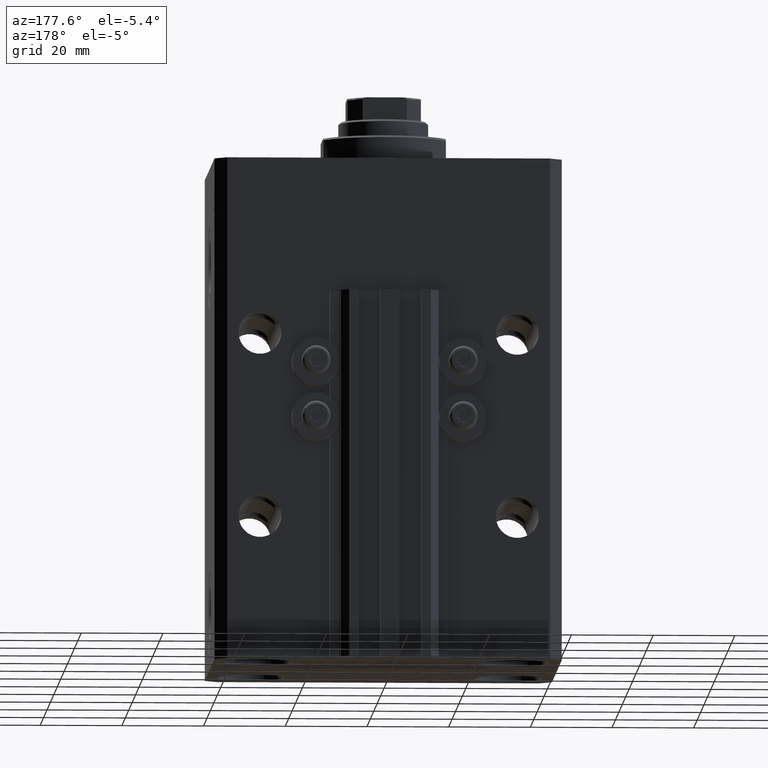
[diagram: clean part render]
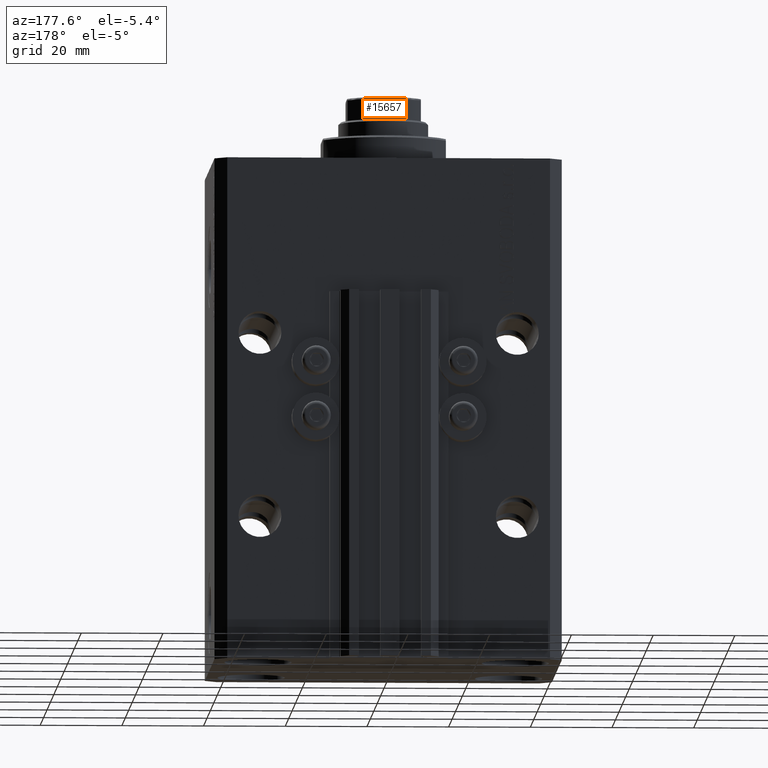
[diagram: same view with one face highlighted and labeled with its STEP entity id]
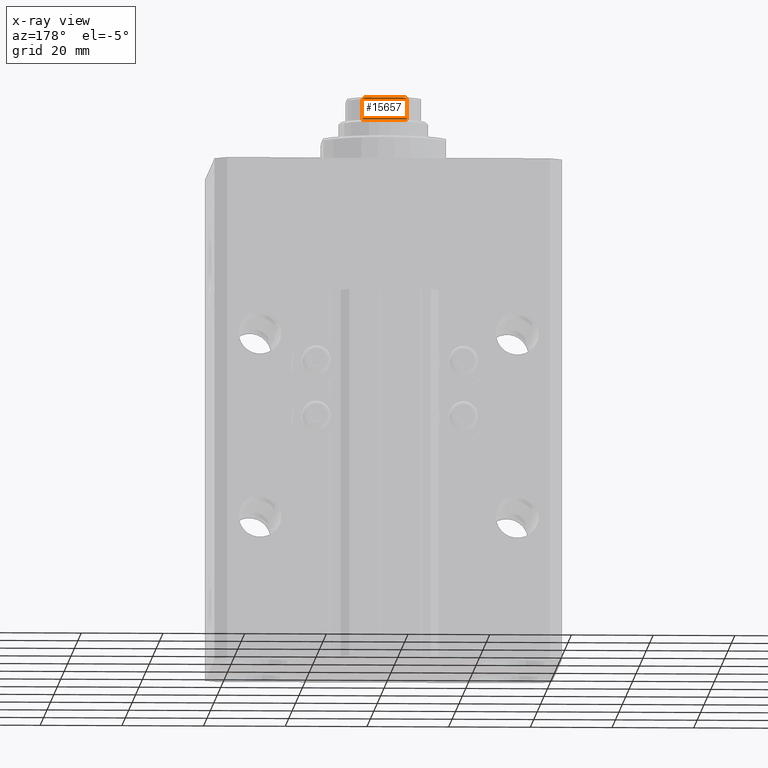
[diagram: x-ray of the same camera — body ghosted, the highlighted face saturated]
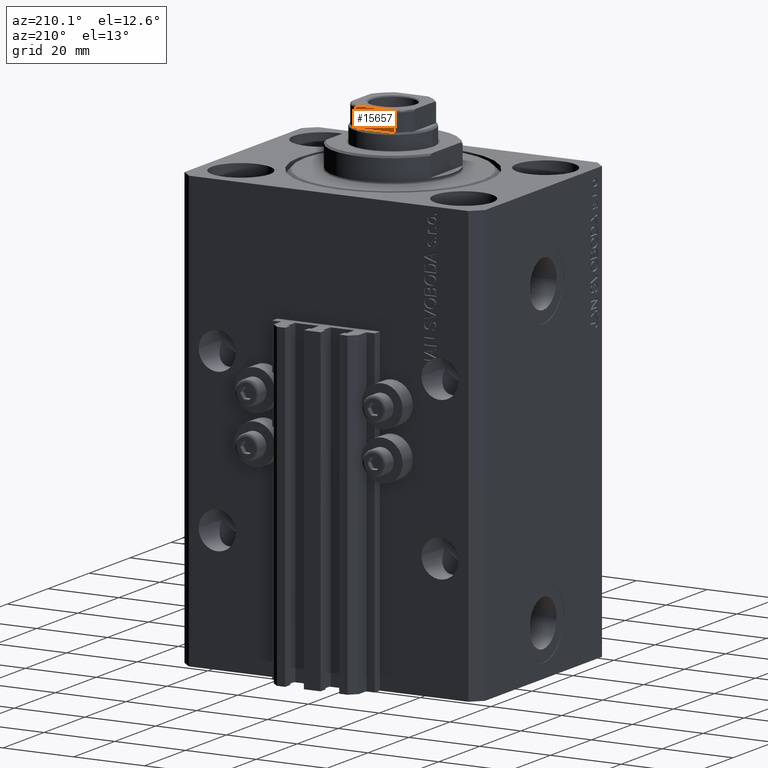
[diagram: same view with one face highlighted and labeled with its STEP entity id]
A machine part, auxiliary view. The second image highlights one B-rep face of the part: STEP entity #15657.
The next image is the same camera in x-ray: the body ghosted, the highlighted face saturated — about 0% of this face is hidden behind the body in this view.
A second angle (auxiliary view) of the same face is appended — the face is thin or edge-on in the first view.
In plain terms, the highlighted planar face has unit normal (0, -1, 0).
Its self-contained STEP definition (entity closure, byte-faithful):
#126 = CARTESIAN_POINT ( 'NONE',  ( 5.408326913195989682, 8.999999999999998224, 128.0999999999999943 ) ) ;
#722 = LINE ( 'NONE', #27072, #26018 ) ;
#864 = CARTESIAN_POINT ( 'NONE',  ( -5.408326913195986130, 8.999999999999998224, 123.0999999999999943 ) ) ;
#2374 = VERTEX_POINT ( 'NONE', #44009 ) ;
#2682 = VERTEX_POINT ( 'NONE', #8337 ) ;
#2803 = CARTESIAN_POINT ( 'NONE',  ( -5.390954572107328424, 8.999999999999998224, 128.2053628521399560 ) ) ;
#3031 = ORIENTED_EDGE ( 'NONE', *, *, #6586, .T. ) ;
#3723 = B_SPLINE_CURVE_WITH_KNOTS ( 'NONE', 3,
 ( #25987, #33844, #7758, #19093, #30394, #7275, #18606, #38012, #22306, #126 ),
 .UNSPECIFIED., .F., .F.,
 ( 4, 2, 2, 2, 4 ),
 ( 8.673617379884035472E-19, 0.0006221106941441066065, 0.0009331660412161584461, 0.001088693714752183173, 0.001244221388288208009 ),
 .UNSPECIFIED. ) ;
#5948 = ORIENTED_EDGE ( 'NONE', *, *, #35971, .T. ) ;
#6017 = CARTESIAN_POINT ( 'NONE',  ( -5.077896145217239976, 8.999999999999998224, 128.4773016776066754 ) ) ;
#6586 = EDGE_CURVE ( 'NONE', #2374, #36781, #722, .T. ) ;
#6746 = CARTESIAN_POINT ( 'NONE',  ( -4.778533838065919248, 9.000000000000000000, 128.5778291476469519 ) ) ;
#6789 = ORIENTED_EDGE ( 'NONE', *, *, #45857, .F. ) ;
#7035 = CARTESIAN_POINT ( 'NONE',  ( -9.000000000000000000, 8.999999999999998224, 128.5999999999999943 ) ) ;
#7275 = CARTESIAN_POINT ( 'NONE',  ( 5.297634495023408441, 8.999999999999996447, 128.3344228052779670 ) ) ;
#7758 = CARTESIAN_POINT ( 'NONE',  ( 4.775913644518300138, 8.999999999999998224, 128.5781460743083358 ) ) ;
#8337 = CARTESIAN_POINT ( 'NONE',  ( -5.408326913195988794, 8.999999999999998224, 128.0999999999999943 ) ) ;
#8978 = LINE ( 'NONE', #24248, #45151 ) ;
#9955 = CARTESIAN_POINT ( 'NONE',  ( -5.174818616237117475, 8.999999999999998224, 128.4325218846533403 ) ) ;
#10379 = CARTESIAN_POINT ( 'NONE',  ( 5.408326913195989682, 8.999999999999998224, -0.001000000000001000089 ) ) ;
#10681 = ORIENTED_EDGE ( 'NONE', *, *, #43023, .T. ) ;
#11702 = DIRECTION ( 'NONE',  ( 0.000000000000000000, -0.000000000000000000, -1.000000000000000000 ) ) ;
#12209 = VECTOR ( 'NONE', #37386, 1000.000000000000000 ) ;
#13658 = CARTESIAN_POINT ( 'NONE',  ( -4.569278586016985777, 8.999999999999996447, 128.5999999999999659 ) ) ;
#14169 = B_SPLINE_CURVE_WITH_KNOTS ( 'NONE', 3,
 ( #48291, #32592, #2803, #43638, #44118, #9955, #6017, #6746, #13658, #39964 ),
 .UNSPECIFIED., .F., .F.,
 ( 4, 2, 2, 2, 4 ),
 ( 0.000000000000000000, 0.0001582447020887951263, 0.0003164894041775902526, 0.0006329788083552346069, 0.001265957616710521039 ),
 .UNSPECIFIED. ) ;
#15657 = ADVANCED_FACE ( 'NONE', ( #41460 ), #48587, .F. ) ;
#16382 = EDGE_CURVE ( 'NONE', #36781, #2682, #8978, .T. ) ;
#16902 = EDGE_CURVE ( 'NONE', #2374, #34288, #44056, .T. ) ;
#17328 = ORIENTED_EDGE ( 'NONE', *, *, #16902, .F. ) ;
#17610 = EDGE_LOOP ( 'NONE', ( #6789, #10681, #17328, #3031, #25380, #5948 ) ) ;
#18606 = CARTESIAN_POINT ( 'NONE',  ( 5.335288102212747852, 9.000000000000000000, 128.2956905402762118 ) ) ;
#19093 = CARTESIAN_POINT ( 'NONE',  ( 5.074490744525480324, 9.000000000000000000, 128.4787200784332697 ) ) ;
#20729 = DIRECTION ( 'NONE',  ( -0.000000000000000000, -0.000000000000000000, 1.000000000000000000 ) ) ;
#22306 = CARTESIAN_POINT ( 'NONE',  ( 5.408326913195984353, 8.999999999999996447, 128.1537434673187761 ) ) ;
#23207 = AXIS2_PLACEMENT_3D ( 'NONE', #7035, #37539, #11702 ) ;
#24248 = CARTESIAN_POINT ( 'NONE',  ( -5.408326913195988794, 8.999999999999998224, -0.001000000000001000089 ) ) ;
#25291 = CARTESIAN_POINT ( 'NONE',  ( -4.358898943540678417, 8.999999999999998224, 128.5999999999999943 ) ) ;
#25380 = ORIENTED_EDGE ( 'NONE', *, *, #16382, .T. ) ;
#25987 = CARTESIAN_POINT ( 'NONE',  ( 4.358898943540677529, 8.999999999999998224, 128.5999999999999943 ) ) ;
#26018 = VECTOR ( 'NONE', #38374, 1000.000000000000000 ) ;
#27072 = CARTESIAN_POINT ( 'NONE',  ( -9.000000000000000000, 8.999999999999998224, 123.0999999999999943 ) ) ;
#29766 = LINE ( 'NONE', #44745, #12209 ) ;
#30394 = CARTESIAN_POINT ( 'NONE',  ( 5.173732970196583736, 8.999999999999998224, 128.4331808643798638 ) ) ;
#32592 = CARTESIAN_POINT ( 'NONE',  ( -5.408326913195987906, 9.000000000000000000, 128.1535720727335388 ) ) ;
#33844 = CARTESIAN_POINT ( 'NONE',  ( 4.569272810556668674, 8.999999999999998224, 128.6000000000000227 ) ) ;
#34288 = VERTEX_POINT ( 'NONE', #44872 ) ;
#34345 = CARTESIAN_POINT ( 'NONE',  ( 4.358898943540677529, 8.999999999999998224, 128.5999999999999943 ) ) ;
#35701 = VERTEX_POINT ( 'NONE', #34345 ) ;
#35971 = EDGE_CURVE ( 'NONE', #2682, #44904, #14169, .T. ) ;
#36781 = VERTEX_POINT ( 'NONE', #864 ) ;
#37386 = DIRECTION ( 'NONE',  ( -1.000000000000000000, -0.000000000000000000, -0.000000000000000000 ) ) ;
#37539 = DIRECTION ( 'NONE',  ( 0.000000000000000000, -1.000000000000000000, 0.000000000000000000 ) ) ;
#38012 = CARTESIAN_POINT ( 'NONE',  ( 5.390945448132516304, 8.999999999999998224, 128.2054816538970385 ) ) ;
#38374 = DIRECTION ( 'NONE',  ( -1.000000000000000000, -0.000000000000000000, -0.000000000000000000 ) ) ;
#39227 = DIRECTION ( 'NONE',  ( -0.000000000000000000, -0.000000000000000000, 1.000000000000000000 ) ) ;
#39964 = CARTESIAN_POINT ( 'NONE',  ( -4.358898943540678417, 8.999999999999998224, 128.5999999999999943 ) ) ;
#41460 = FACE_OUTER_BOUND ( 'NONE', #17610, .T. ) ;
#43023 = EDGE_CURVE ( 'NONE', #35701, #34288, #3723, .T. ) ;
#43638 = CARTESIAN_POINT ( 'NONE',  ( -5.335664150027731090, 8.999999999999998224, 128.2951843380012633 ) ) ;
#44009 = CARTESIAN_POINT ( 'NONE',  ( 5.408326913195989682, 8.999999999999998224, 123.0999999999999943 ) ) ;
#44056 = LINE ( 'NONE', #10379, #47539 ) ;
#44118 = CARTESIAN_POINT ( 'NONE',  ( -5.298186678102084102, 8.999999999999996447, 128.3338781215004474 ) ) ;
#44745 = CARTESIAN_POINT ( 'NONE',  ( -9.000000000000000000, 8.999999999999998224, 128.5999999999999943 ) ) ;
#44872 = CARTESIAN_POINT ( 'NONE',  ( 5.408326913195989682, 8.999999999999998224, 128.0999999999999943 ) ) ;
#44904 = VERTEX_POINT ( 'NONE', #25291 ) ;
#45151 = VECTOR ( 'NONE', #39227, 1000.000000000000000 ) ;
#45857 = EDGE_CURVE ( 'NONE', #35701, #44904, #29766, .T. ) ;
#47539 = VECTOR ( 'NONE', #20729, 1000.000000000000000 ) ;
#48291 = CARTESIAN_POINT ( 'NONE',  ( -5.408326913195988794, 8.999999999999998224, 128.0999999999999943 ) ) ;
#48587 = PLANE ( 'NONE',  #23207 ) ;